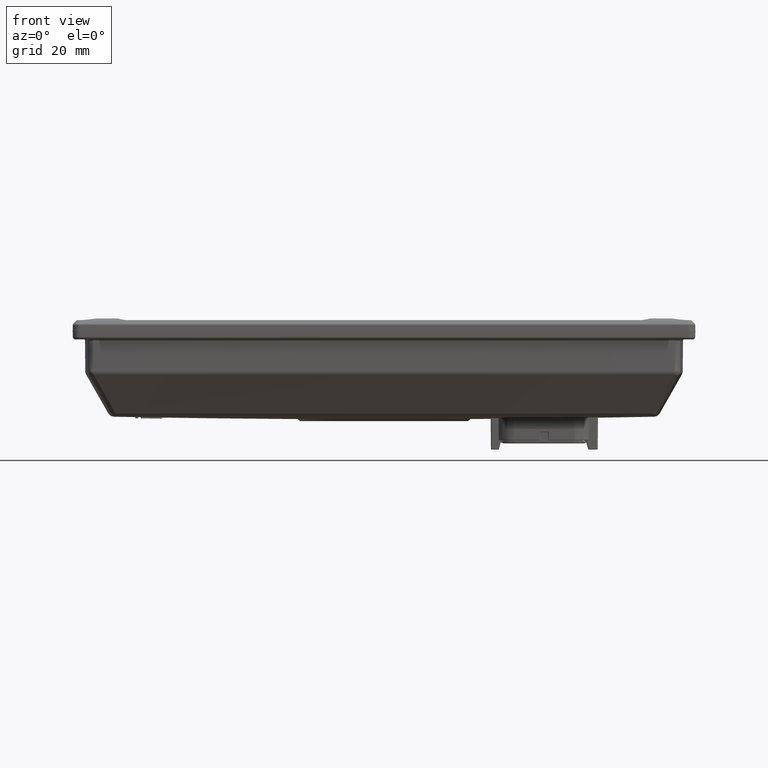
[diagram: clean part render]
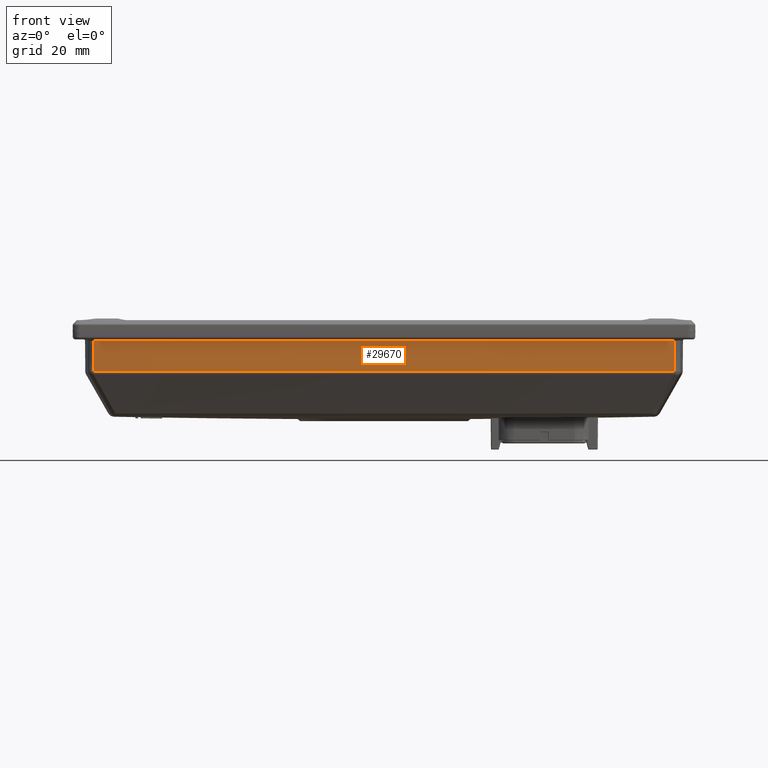
[diagram: same view with one face highlighted and labeled with its STEP entity id]
A machine part, front view. The second image highlights one B-rep face of the part: STEP entity #29670.
In plain terms, the highlighted conical surface has half-angle 0.5 deg.
Its self-contained STEP definition (entity closure, byte-faithful):
#581=CONICAL_SURFACE('',#35423,6160.99999999979,0.00872664625997165);
#1670=CIRCLE('',#35424,6160.97822090797);
#1671=CIRCLE('',#35425,6160.87787199168);
#11114=ORIENTED_EDGE('',*,*,#18782,.T.);
#11115=ORIENTED_EDGE('',*,*,#18813,.T.);
#11116=ORIENTED_EDGE('',*,*,#18776,.T.);
#11117=ORIENTED_EDGE('',*,*,#18814,.T.);
#18776=EDGE_CURVE('',#22764,#22765,#24897,.T.);
#18782=EDGE_CURVE('',#22771,#22770,#24902,.T.);
#18813=EDGE_CURVE('',#22770,#22764,#1670,.T.);
#18814=EDGE_CURVE('',#22765,#22771,#1671,.T.);
#22764=VERTEX_POINT('',#49813);
#22765=VERTEX_POINT('',#49814);
#22770=VERTEX_POINT('',#49850);
#22771=VERTEX_POINT('',#49855);
#24897=B_SPLINE_CURVE_WITH_KNOTS('',3,(#49809,#49810,#49811,#49812),
 .UNSPECIFIED.,.F.,.F.,(4,4),(0.00249581801807779,0.0139955001982619),
 .UNSPECIFIED.);
#24902=B_SPLINE_CURVE_WITH_KNOTS('',3,(#49851,#49852,#49853,#49854),
 .UNSPECIFIED.,.F.,.F.,(4,4),(0.,0.0114996821801877),.UNSPECIFIED.);
#25664=EDGE_LOOP('',(#11114,#11115,#11116,#11117));
#27660=FACE_BOUND('',#25664,.T.);
#29670=ADVANCED_FACE('',(#27660),#581,.T.);
#35423=AXIS2_PLACEMENT_3D('',#49978,#39915,#39916);
#35424=AXIS2_PLACEMENT_3D('',#49979,#39917,#39918);
#35425=AXIS2_PLACEMENT_3D('',#49980,#39919,#39920);
#39915=DIRECTION('',(0.,0.,1.));
#39916=DIRECTION('',(1.,0.,0.));
#39917=DIRECTION('',(0.,0.,-1.));
#39918=DIRECTION('',(-1.,0.,0.));
#39919=DIRECTION('',(0.,0.,1.));
#39920=DIRECTION('',(1.,0.,0.));
#49809=CARTESIAN_POINT('',(-108.790070767535,-62.017642750936,-4.19563673225445));
#49810=CARTESIAN_POINT('',(-108.757616176498,-61.9847610660331,-8.02858569405789));
#49811=CARTESIAN_POINT('',(-108.72516079913,-61.9518791477815,-11.8615346472014));
#49812=CARTESIAN_POINT('',(-108.692704635279,-61.918996996136,-15.6944835916831));
#49813=CARTESIAN_POINT('',(-108.790070767534,-62.0176427509353,-4.19563673225444));
#49814=CARTESIAN_POINT('',(-108.692704635279,-61.9189969961351,-15.6944835916831));
#49850=CARTESIAN_POINT('',(108.790070767535,-62.0176427509356,-4.19563673225081));
#49851=CARTESIAN_POINT('',(108.692704635279,-61.918996996135,-15.6944835916831));
#49852=CARTESIAN_POINT('',(108.72516079913,-61.9518791477805,-11.8615346472002));
#49853=CARTESIAN_POINT('',(108.757616176498,-61.9847610660328,-8.02858569405547));
#49854=CARTESIAN_POINT('',(108.790070767535,-62.0176427509356,-4.19563673225081));
#49855=CARTESIAN_POINT('',(108.692704635279,-61.918996996135,-15.6944835916831));
#49978=CARTESIAN_POINT('',(-1.11022302462516E-12,6098.00000000016,-1.70000000002801));
#49979=CARTESIAN_POINT('',(-1.11022302462516E-12,6098.00000000016,-4.19563673222001));
#49980=CARTESIAN_POINT('',(-1.11022302462516E-12,6098.00000000016,-15.6944835916831));